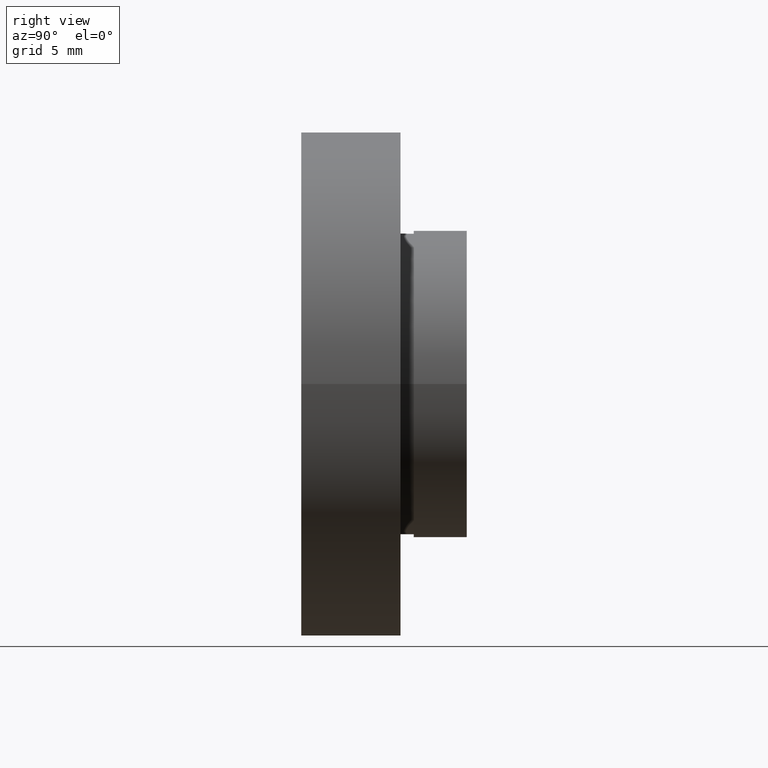
[diagram: clean part render]
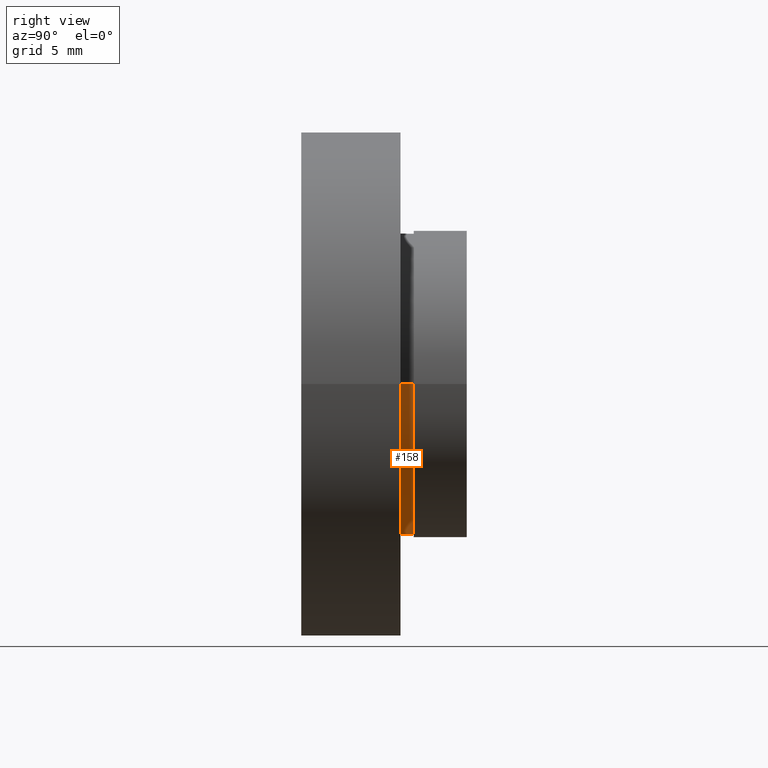
[diagram: same view with one face highlighted and labeled with its STEP entity id]
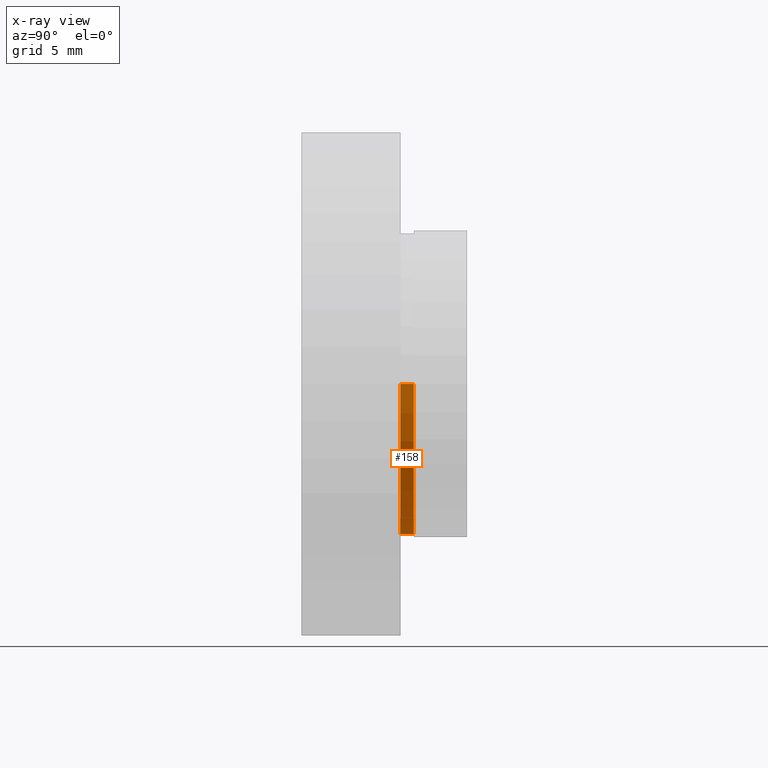
[diagram: x-ray of the same camera — body ghosted, the highlighted face saturated]
A machine part, right view. The second image highlights one B-rep face of the part: STEP entity #158.
The next image is the same camera in x-ray: the body ghosted, the highlighted face saturated — about 0% of this face is hidden behind the body in this view.
In plain terms, the highlighted cylindrical surface (partial cylindrical patch) has radius 11.35 mm, axis along (-0, 1, -0).
Its self-contained STEP definition (entity closure, byte-faithful):
#22 = AXIS2_PLACEMENT_3D ( 'NONE', #520, #36, #370 ) ;
#36 = DIRECTION ( 'NONE',  ( -1.224646799147351000E-016, 1.000000000000000000, -0.0000000000000000000 ) ) ;
#37 = EDGE_CURVE ( 'NONE', #258, #238, #510, .T. ) ;
#38 = CARTESIAN_POINT ( 'NONE',  ( 11.35000000000000000, 16.88601823708207700, 1.389974117032245900E-015 ) ) ;
#48 = CARTESIAN_POINT ( 'NONE',  ( 0.0000000000000000000, 16.88601823708207700, 0.0000000000000000000 ) ) ;
#49 = EDGE_CURVE ( 'NONE', #238, #454, #169, .T. ) ;
#81 = CARTESIAN_POINT ( 'NONE',  ( -11.35000000000000000, 16.88601823708207700, 0.0000000000000000000 ) ) ;
#115 = CARTESIAN_POINT ( 'NONE',  ( -11.34999999999999800, 8.499999999999996400, 0.0000000000000000000 ) ) ;
#119 = ORIENTED_EDGE ( 'NONE', *, *, #37, .F. ) ;
#120 = EDGE_CURVE ( 'NONE', #595, #454, #615, .T. ) ;
#135 = EDGE_LOOP ( 'NONE', ( #119, #498, #549, #526 ) ) ;
#145 = DIRECTION ( 'NONE',  ( -1.224646799147351000E-016, 1.000000000000000000, -0.0000000000000000000 ) ) ;
#158 = ADVANCED_FACE ( 'NONE', ( #249 ), #218, .T. ) ;
#169 = CIRCLE ( 'NONE', #22, 11.35000000000000000 ) ;
#187 = CIRCLE ( 'NONE', #259, 11.35000000000000000 ) ;
#218 = CYLINDRICAL_SURFACE ( 'NONE', #353, 11.35000000000000000 ) ;
#238 = VERTEX_POINT ( 'NONE', #530 ) ;
#241 = CARTESIAN_POINT ( 'NONE',  ( 11.35000000000000100, 7.500000000000000000, 1.389974117032245900E-015 ) ) ;
#249 = FACE_OUTER_BOUND ( 'NONE', #135, .T. ) ;
#258 = VERTEX_POINT ( 'NONE', #241 ) ;
#259 = AXIS2_PLACEMENT_3D ( 'NONE', #292, #485, #543 ) ;
#285 = CARTESIAN_POINT ( 'NONE',  ( -11.34999999999999800, 7.499999999999996400, 0.0000000000000000000 ) ) ;
#292 = CARTESIAN_POINT ( 'NONE',  ( 1.149455719078122700E-015, 7.499999999999998200, 0.0000000000000000000 ) ) ;
#295 = EDGE_CURVE ( 'NONE', #258, #595, #187, .T. ) ;
#353 = AXIS2_PLACEMENT_3D ( 'NONE', #48, #145, #619 ) ;
#370 = DIRECTION ( 'NONE',  ( -1.000000000000000000, -1.528390727732869900E-016, 0.0000000000000000000 ) ) ;
#377 = VECTOR ( 'NONE', #517, 1000.000000000000000 ) ;
#454 = VERTEX_POINT ( 'NONE', #115 ) ;
#485 = DIRECTION ( 'NONE',  ( -1.224646799147351000E-016, 1.000000000000000000, -0.0000000000000000000 ) ) ;
#488 = VECTOR ( 'NONE', #514, 1000.000000000000000 ) ;
#498 = ORIENTED_EDGE ( 'NONE', *, *, #295, .T. ) ;
#510 = LINE ( 'NONE', #38, #377 ) ;
#514 = DIRECTION ( 'NONE',  ( -1.224646799147351000E-016, 1.000000000000000000, -0.0000000000000000000 ) ) ;
#517 = DIRECTION ( 'NONE',  ( -1.224646799147351000E-016, 1.000000000000000000, -0.0000000000000000000 ) ) ;
#520 = CARTESIAN_POINT ( 'NONE',  ( 1.026991039163387700E-015, 8.499999999999998200, 0.0000000000000000000 ) ) ;
#526 = ORIENTED_EDGE ( 'NONE', *, *, #49, .F. ) ;
#530 = CARTESIAN_POINT ( 'NONE',  ( 11.35000000000000100, 8.500000000000000000, 1.389974117032245900E-015 ) ) ;
#543 = DIRECTION ( 'NONE',  ( -1.000000000000000000, -1.528390727732869900E-016, 0.0000000000000000000 ) ) ;
#549 = ORIENTED_EDGE ( 'NONE', *, *, #120, .T. ) ;
#595 = VERTEX_POINT ( 'NONE', #285 ) ;
#615 = LINE ( 'NONE', #81, #488 ) ;
#619 = DIRECTION ( 'NONE',  ( -1.000000000000000000, 0.0000000000000000000, 0.0000000000000000000 ) ) ;